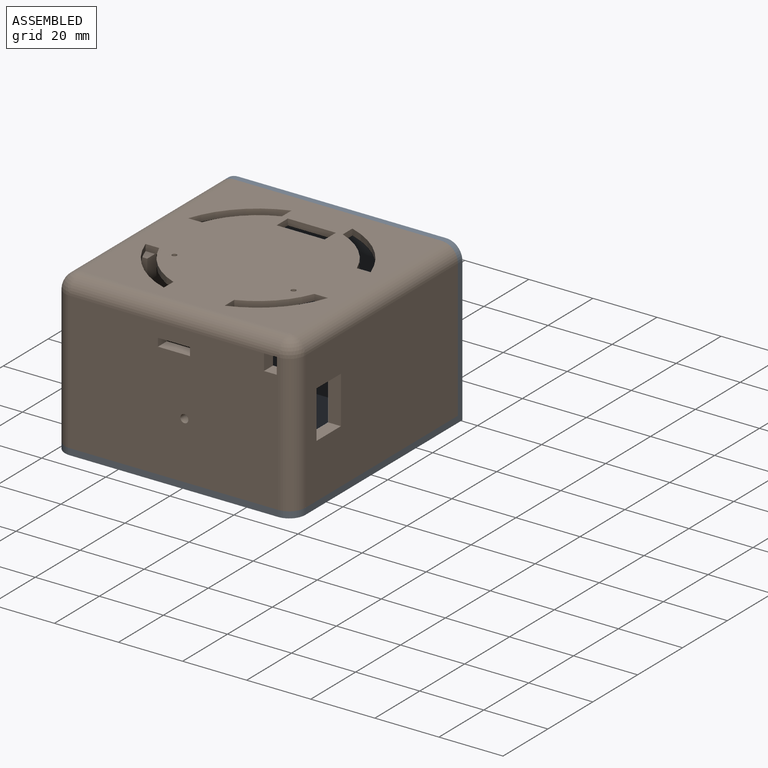
[diagram: assembled view]
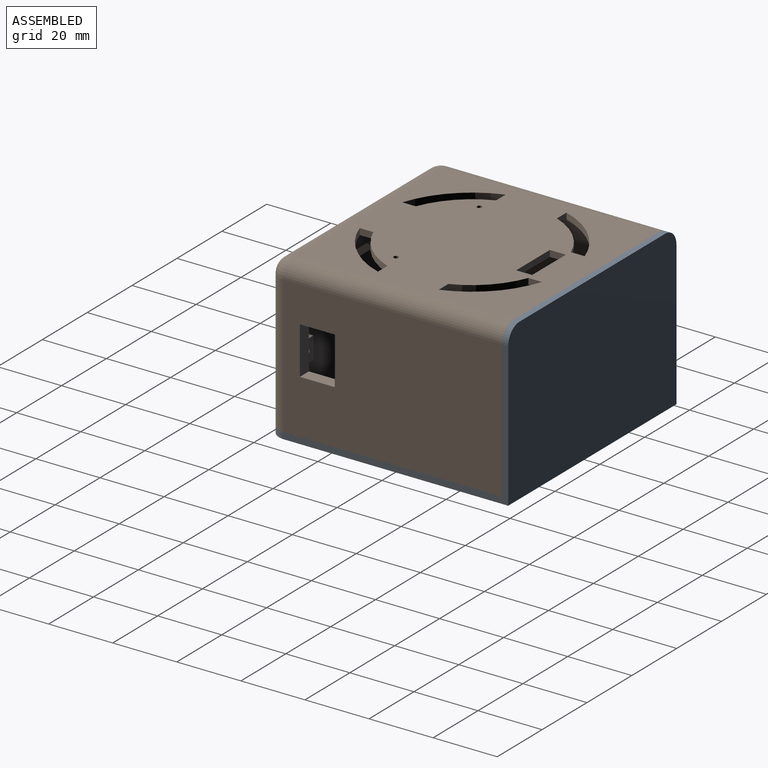
[diagram: assembled view, second angle]
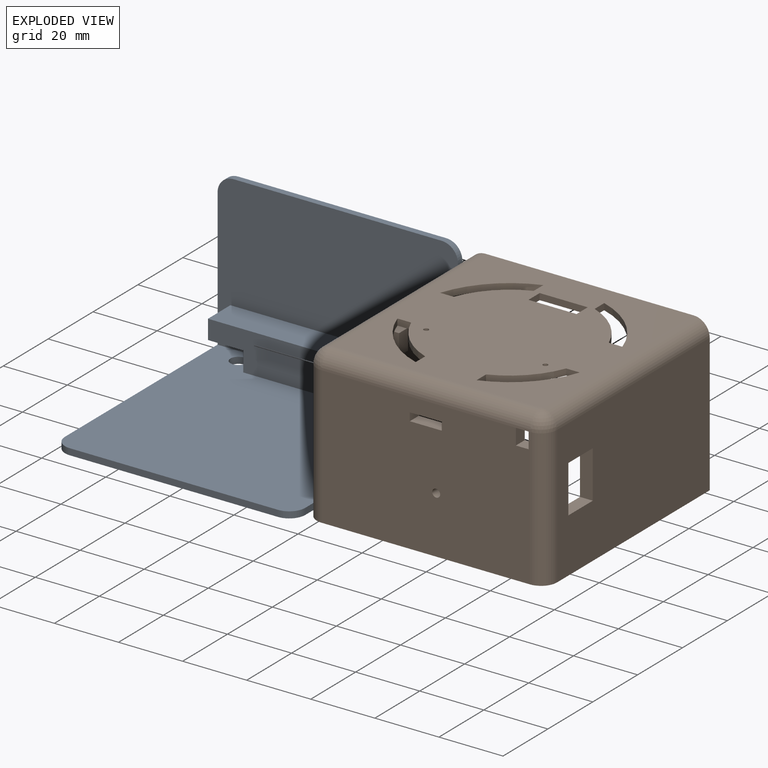
[diagram: exploded view]
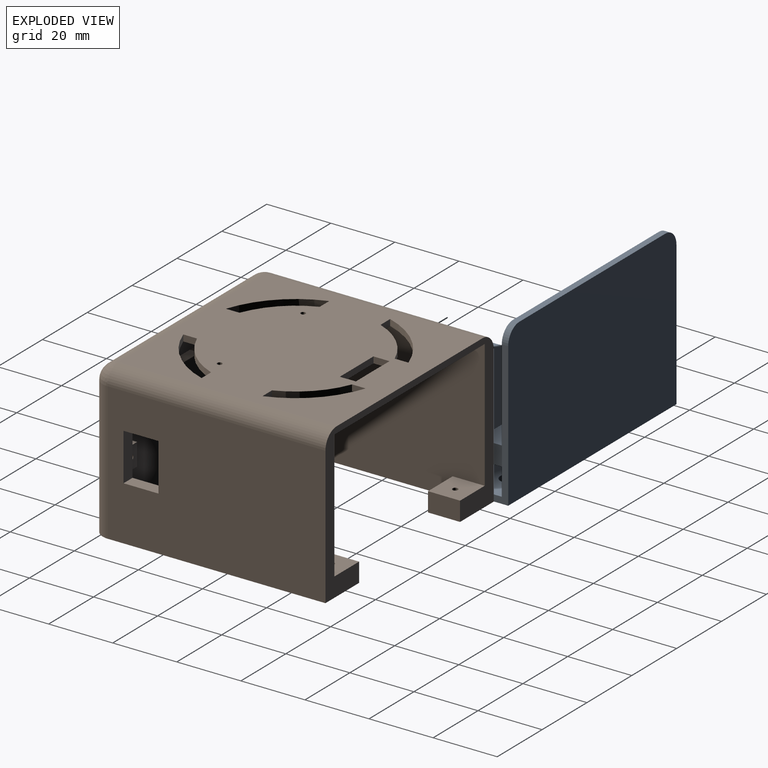
[diagram: exploded view, second angle]
ASSEMBLY  parts=2 mates=3
PART A: 22 faces, bbox 75x75x50 mm
  f0: plane 11x10mm, normal (0,0,-1), area 110mm2, adj f2,f12,f18,f20
  f1: plane 67x10mm, normal (0,0,1), area 670mm2, adj f2,f12,f20,f21
  f2: plane 67x12.2mm, normal (0,-1,0), area 681mm2, adj f0,f1,f7,f17,f18,f19,f20,f21
  f3: plane 75x50mm, normal (0,1,0), area 3739.3mm2, adj f4,f6,f8,f11,f13,f14
  f4: plane 70x45mm, normal (-1,0,0), area 226mm2, adj f3,f7,f8,f12,f13,f15
  f5: plane 65x2mm, normal (0,-1,0), area 130mm2, adj f7,f8,f15,f16
  f6: plane 70x45mm, normal (1,0,0), area 226mm2, adj f3,f7,f8,f12,f14,f16
  f7: plane 75x73mm, normal (0,0,1), area 4975mm2, adj f2,f4,f5,f6,f9,f10,f12,f15
  f8: plane 75x75mm, normal (0,0,-1), area 5575mm2, adj f3,f4,f5,f6,f9,f10,f15,f16
  f9: cylinder r=2.5mm len=5mm, axis (0,0,-1), area 31.4mm2, adj f7,f8
  f10: cylinder r=2.5mm len=5mm, axis (0,0,-1), area 31.4mm2, adj f7,f8
  f11: plane 65x2mm, normal (0,0,1), area 130mm2, adj f3,f12,f13,f14
  f12: plane 75x48mm, normal (0,-1,0), area 2908.3mm2, adj f0,f1,f4,f6,f7,f11,f13,f14
  f13: cylinder r=5mm len=5mm, axis (0,1,0), area 15.7mm2, adj f3,f4,f11,f12
  f14: cylinder r=5mm len=5mm, axis (0,-1,0), area 15.7mm2, adj f3,f6,f11,f12
  f15: cylinder r=5mm len=5mm, axis (0,0,-1), area 15.7mm2, adj f4,f5,f7,f8
  f16: cylinder r=5mm len=5mm, axis (0,0,1), area 15.7mm2, adj f5,f6,f7,f8
  f17: plane 10x6.2mm, normal (-1,0,0), area 62mm2, adj f2,f7,f12,f19
  f18: plane 10x6.2mm, normal (1,0,0), area 62mm2, adj f0,f2,f7,f12
  f19: plane 11x10mm, normal (0,0,-1), area 110mm2, adj f2,f12,f17,f21
  f20: plane 10x6mm, normal (1,0,0), area 60mm2, adj f0,f1,f2,f12
  f21: plane 10x6mm, normal (-1,0,0), area 60mm2, adj f1,f2,f12,f19
PART B: 100 faces, bbox 75x73x48 mm
  f0: plane 69x46mm, normal (-1,0,0), area 1872.9mm2, adj f2,f4,f5,f11,f16,f17,f19,f63
  f1: plane 69x46mm, normal (1,0,0), area 3096.5mm2, adj f2,f4,f5,f11,f23,f24,f25,f72
  f2: plane 75x73mm, normal (0,0,-1), area 1057.5mm2, adj f0,f1,f5,f11,f63,f64,f67,f68
  f3: plane 68x65mm, normal (0,0,1), area 3947.9mm2, adj f5,f6,f8,f9,f10,f45,f46,f47
  f4: plane 69x67mm, normal (0,0,-1), area 4111mm2, adj f0,f1,f5,f6,f8,f9,f10,f11
  f5: plane 75x48mm, normal (0,1,0), area 639.3mm2, adj f0,f1,f2,f3,f4,f68,f69,f73
  f6: cylinder r=30mm len=18.96mm, axis (0,0,-1), area 55.6mm2, adj f3,f4,f45,f52
  f7: plane 3.5x2.96mm, normal (0,0,1), area 8mm2, adj f9,f14,f35,f49
  f8: cylinder r=30mm len=18.96mm, axis (0,0,-1), area 55.6mm2, adj f3,f4,f50,f51
  f9: cylinder r=30mm len=18.96mm, axis (0,0,-1), area 55.6mm2, adj f3,f4,f7,f48,f49
  f10: cylinder r=30mm len=18.96mm, axis (0,0,-1), area 55.6mm2, adj f3,f4,f27,f46,f47
  f11: plane 67x46mm, normal (0,1,0), area 2934.1mm2, adj f0,f1,f2,f4,f15,f16,f17,f21
  f12: plane 7x4mm, normal (0,0,-1), area 28mm2, adj f14,f34,f35,f36
  f13: cylinder r=0.85mm len=4mm, axis (0,1,0), area 21.4mm2, adj f14,f36
  f14: plane 7x6.5mm, normal (0,-1,0), area 43.2mm2, adj f4,f7,f12,f13,f34,f35
  f15: plane 7x2.5mm, normal (-1,0,0), area 17.5mm2, adj f11,f16,f17,f19
  f16: plane 7x2.5mm, normal (0,0,-1), area 17.5mm2, adj f0,f11,f15,f19
  f17: plane 7x2.5mm, normal (0,0,1), area 17.5mm2, adj f0,f11,f15,f19
  f18: cylinder r=0.85mm len=2.5mm, axis (0,1,0), area 13.4mm2, adj f19,f20
  f19: plane 7x7mm, normal (0,1,0), area 46.7mm2, adj f0,f15,f16,f17,f18
  f20: plane 1.7x1.7mm, normal (0,1,0), area 2.3mm2, adj f18
  f21: plane 7x2.5mm, normal (1,0,0), area 17.5mm2, adj f11,f23,f24,f25
  f22: cylinder r=0.85mm len=2.5mm, axis (0,1,0), area 13.4mm2, adj f25,f26
  f23: plane 7x2.5mm, normal (0,0,1), area 17.5mm2, adj f1,f11,f21,f25
  f24: plane 7x2.5mm, normal (0,0,-1), area 17.5mm2, adj f1,f11,f21,f25
  f25: plane 7x7mm, normal (0,1,0), area 46.7mm2, adj f1,f21,f22,f23,f24
  f26: plane 1.7x1.7mm, normal (0,1,0), area 2.3mm2, adj f22
  f27: plane 3.5x2.96mm, normal (0,0,1), area 8mm2, adj f10,f28,f32,f46
  f28: plane 6.5x4mm, normal (1,0,0), area 26mm2, adj f4,f27,f29,f32,f33
  f29: plane 7x4mm, normal (0,0,-1), area 28mm2, adj f28,f31,f32,f33
  f30: cylinder r=0.85mm len=4mm, axis (0,1,0), area 21.4mm2, adj f32,f33
  f31: plane 6.5x4mm, normal (-1,0,0), area 26mm2, adj f4,f29,f32,f33
  f32: plane 7x6.5mm, normal (0,-1,0), area 43.2mm2, adj f4,f27,f28,f29,f30,f31
  f33: plane 7x6.5mm, normal (0,1,0), area 43.2mm2, adj f4,f28,f29,f30,f31
  f34: plane 6.5x4mm, normal (1,0,0), area 26mm2, adj f4,f12,f14,f36
  f35: plane 6.5x4mm, normal (-1,0,0), area 26mm2, adj f4,f7,f12,f14,f36
  f36: plane 7x6.5mm, normal (0,1,0), area 43.2mm2, adj f4,f12,f13,f34,f35
  f37: plane 4x4mm, normal (0,0,1), area 16mm2, adj f11,f38,f39,f71
  f38: plane 5x4mm, normal (1,0,0), area 20mm2, adj f11,f37,f40,f71
  f39: plane 5x4mm, normal (-1,0,0), area 20mm2, adj f11,f37,f40,f71
  f40: plane 4x4mm, normal (0,0,-1), area 16mm2, adj f11,f38,f39,f88
  f41: plane 10x4mm, normal (0,0,-1), area 40mm2, adj f11,f42,f44,f71
  f42: plane 4x2.5mm, normal (1,0,0), area 10mm2, adj f11,f41,f43,f71
  f43: plane 10x4mm, normal (0,0,1), area 40mm2, adj f11,f42,f44,f71
  f44: plane 4x2.5mm, normal (-1,0,0), area 10mm2, adj f11,f41,f43,f71
  f45: plane 4.25x2mm, normal (0,1,0), area 8.5mm2, adj f3,f4,f6,f56
  f46: plane 4.25x2mm, normal (0,-1,0), area 8.5mm2, adj f3,f4,f10,f27,f53
  f47: plane 4.25x2mm, normal (-1,0,0), area 8.5mm2, adj f3,f4,f10,f53
  f48: plane 4.25x2mm, normal (1,0,0), area 8.5mm2, adj f3,f4,f9,f54
  f49: plane 4.25x2mm, normal (0,-1,0), area 8.5mm2, adj f3,f4,f7,f9,f54
  f50: plane 4.25x2mm, normal (0,1,0), area 8.5mm2, adj f3,f4,f8,f55
  f51: plane 4.25x2mm, normal (1,0,0), area 8.5mm2, adj f3,f4,f8,f55
  f52: plane 4.25x2mm, normal (-1,0,0), area 8.5mm2, adj f3,f4,f6,f56
  f53: cylinder r=26mm len=14.7mm, axis (0,0,1), area 42.8mm2, adj f3,f4,f46,f47
  f54: cylinder r=26mm len=14.7mm, axis (0,0,1), area 42.8mm2, adj f3,f4,f48,f49
  f55: cylinder r=26mm len=14.7mm, axis (0,0,1), area 42.8mm2, adj f3,f4,f50,f51
  f56: cylinder r=26mm len=14.7mm, axis (0,0,1), area 42.8mm2, adj f3,f4,f45,f52
  f57: plane 5x2mm, normal (-1,0,0), area 10mm2, adj f3,f4,f58,f60
  f58: plane 15x2mm, normal (0,-1,0), area 30mm2, adj f3,f4,f57,f59
  f59: plane 5x2mm, normal (1,0,0), area 10mm2, adj f3,f4,f58,f60
  f60: plane 15x2mm, normal (0,1,0), area 30mm2, adj f3,f4,f57,f59
  f61: cylinder r=0.75mm len=2mm, axis (0,0,1), area 9.4mm2, adj f3,f4
  f62: cylinder r=0.75mm len=2mm, axis (0,0,1), area 9.4mm2, adj f3,f4
  f63: plane 7x7mm, normal (0,-1,0), area 46.7mm2, adj f0,f2,f65,f66,f67
  f64: plane 7x7mm, normal (0,1,0), area 46.7mm2, adj f0,f2,f65,f66,f67
  f65: plane 7x4mm, normal (0,0,1), area 28mm2, adj f0,f63,f64,f67
  f66: cylinder r=0.85mm len=4mm, axis (0,1,0), area 21.4mm2, adj f63,f64
  f67: plane 7x4mm, normal (-1,0,0), area 28mm2, adj f2,f63,f64,f65
  f68: plane 68x43mm, normal (-1,0,0), area 2924mm2, adj f2,f5,f87,f90
  f69: plane 68x43mm, normal (1,0,0), area 2762.7mm2, adj f2,f5,f84,f85,f91,f92,f93,f94
  f70: cylinder r=1.25mm len=4mm, axis (0,1,0), area 31.4mm2, adj f11,f71
  f71: plane 65x43mm, normal (0,-1,0), area 2745.1mm2, adj f2,f37,f38,f39,f41,f42,f43,f44
  f72: plane 11x6mm, normal (0,-1,0), area 66mm2, adj f1,f2,f73,f74
  f73: plane 10x6mm, normal (1,0,0), area 60mm2, adj f2,f5,f72,f74
  f74: plane 11x10mm, normal (0,0,1), area 107.7mm2, adj f1,f5,f72,f73,f80
  f75: plane 11x6mm, normal (0,-1,0), area 66mm2, adj f0,f2,f76,f77
  f76: plane 11x10mm, normal (0,0,1), area 107.7mm2, adj f0,f5,f75,f77,f83
  f77: plane 10x6mm, normal (-1,0,0), area 60mm2, adj f2,f5,f75,f76
  f78: plane 4.5x4.5mm, normal (0,0,-1), area 13.6mm2, adj f79,f80
  f79: cylinder r=2.25mm len=4.5mm, axis (0,0,-1), area 56.5mm2, adj f2,f78
  f80: cylinder r=0.85mm len=2mm, axis (0,0,-1), area 10.7mm2, adj f74,f78
  f81: plane 4.5x4.5mm, normal (0,0,-1), area 13.6mm2, adj f82,f83
  f82: cylinder r=2.25mm len=4.5mm, axis (0,0,-1), area 56.5mm2, adj f2,f81
  f83: cylinder r=0.85mm len=2mm, axis (0,0,-1), area 10.7mm2, adj f76,f81
  f84: cylinder r=5mm len=68mm, axis (0,-1,0), area 534.1mm2, adj f3,f5,f69,f86
  f85: cylinder r=5mm len=43mm, axis (0,0,-1), area 337.7mm2, adj f2,f69,f71,f86
  f86: sphere r=5mm, area 39.3mm2, adj f84,f85,f88
  f87: cylinder r=5mm len=68mm, axis (0,-1,0), area 534.1mm2, adj f3,f5,f68,f89
  f88: cylinder r=5mm len=65mm, axis (-1,0,0), area 510.5mm2, adj f3,f40,f71,f86,f89
  f89: sphere r=5mm, area 39.3mm2, adj f87,f88,f90
  f90: cylinder r=5mm len=43mm, axis (0,0,-1), area 337.7mm2, adj f2,f68,f71,f89
  f91: plane 14.8x4mm, normal (0,1,0), area 59.2mm2, adj f0,f69,f92,f94
  f92: plane 10.9x4mm, normal (0,0,1), area 43.6mm2, adj f0,f69,f91,f93
  f93: plane 14.8x4mm, normal (0,-1,0), area 59.2mm2, adj f0,f69,f92,f94
  f94: plane 10.9x4mm, normal (0,0,-1), area 43.6mm2, adj f0,f69,f91,f93
  f95: plane 29.69x2mm, normal (0,-1,0), area 59.4mm2, adj f0,f96,f98,f99
  f96: plane 34.83x2mm, normal (0,0,1), area 69.7mm2, adj f0,f95,f97,f99
  f97: plane 29.69x2mm, normal (0,1,0), area 59.4mm2, adj f0,f96,f98,f99
  f98: plane 34.83x2mm, normal (0,0,-1), area 69.7mm2, adj f0,f95,f97,f99
  f99: plane 34.83x29.69mm, normal (-1,0,0), area 1034.3mm2, adj f95,f96,f97,f98
PLACE A t=(-0.39,-0.11,-23.82)mm fixed
PLACE B t=(-0.39,-0.11,-21.82)mm
MATE planar A.f4 <-> B.f68  axis (-1,0,0) through (-37.89,15.33,-14.26)mm
MATE planar A.f5 <-> B.f71  axis (0,-1,0) through (-0.39,-37.61,-22.82)mm
MATE planar B.f2 <-> A.f7  axis (0,0,-1) through (-33.89,-4.11,-21.82)mm
